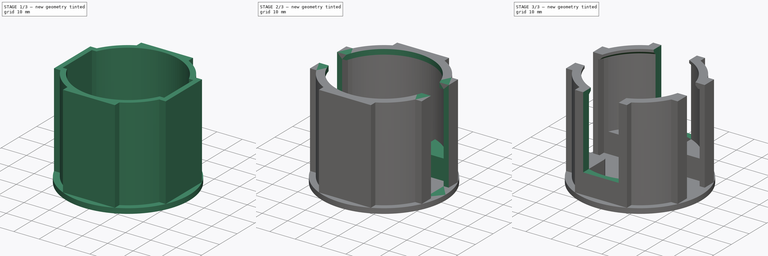
[diagram: build sequence overview — one tinted view per stage of 3, left to right]
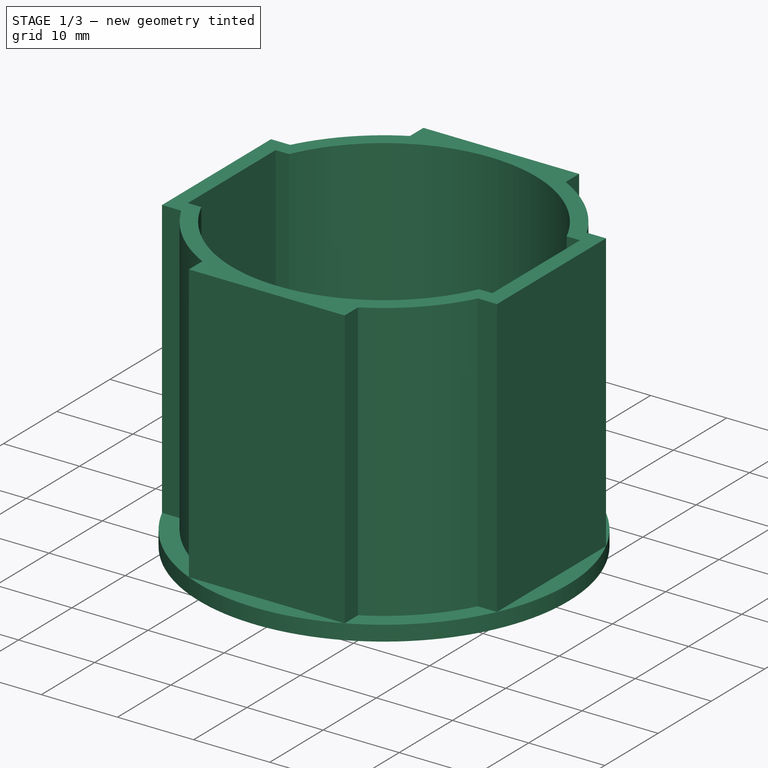
[diagram: stage 1 of 3 — iso view after this stage's code; geometry added in this stage tinted green]
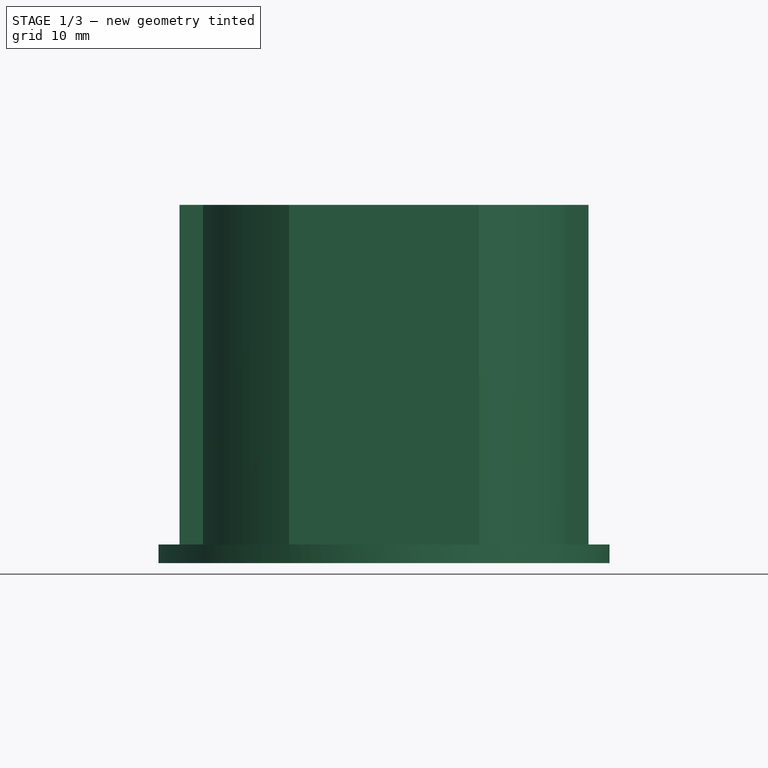
[diagram: stage 1 of 3 — front view after this stage's code; geometry added in this stage tinted green]
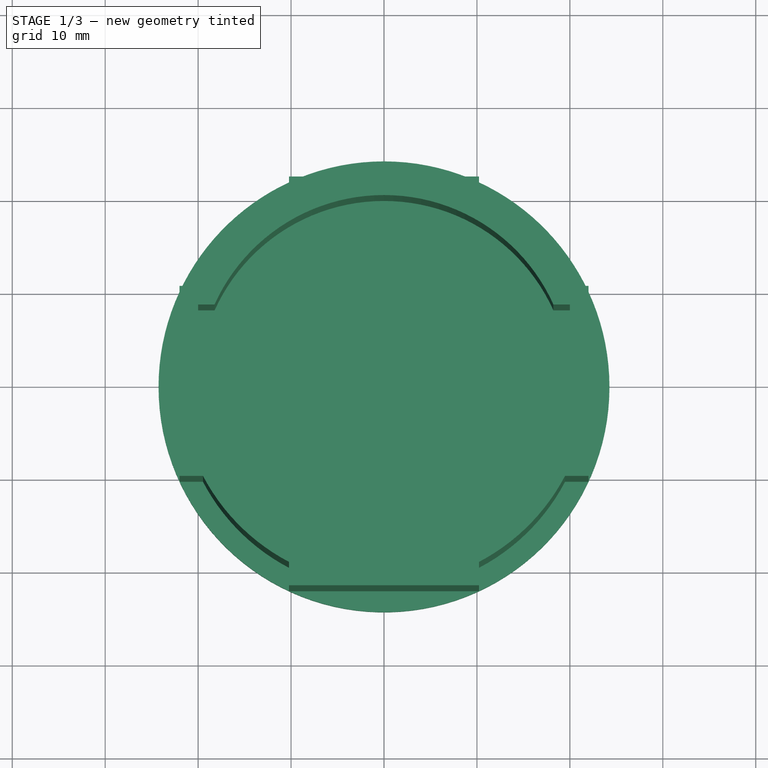
[diagram: stage 1 of 3 — top view after this stage's code; geometry added in this stage tinted green]
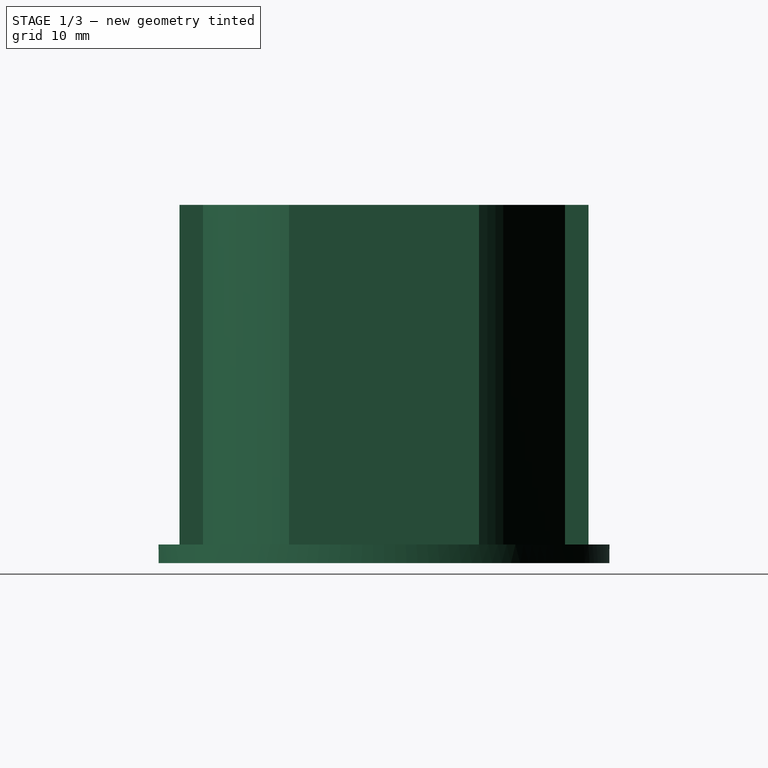
[diagram: stage 1 of 3 — right view after this stage's code; geometry added in this stage tinted green]
FCSTD DOCUMENT  (FreeCAD 1.0R39109 (Git))
Label: Contactor_Cover
License: All rights reserved
LicenseURL: https://en.wikipedia.org/wiki/All_rights_reserved
objects: Sketcher::SketchObject×6, PartDesign::Pad×4, PartDesign::Pocket×2, Spreadsheet::Sheet×1, PartDesign::Chamfer×1, PartDesign::Body×1
note: 34 computed .brp shape members not serialized (recipe doc carries the construction recipe); baked Part::Feature solids carry a one-line shape summary decoded from their .brp

FEATURE [Sketcher::SketchObject] Sketch
  ArcFitTolerance = 1e-06
  AttachmentSupport = -> [XY_Plane]
  FullyConstrained = false
  MakeInternals = false
  MapMode = 5
  expr: Constraints[0] = 39.5 mm + <<config>>.clearance * 2
  expr: Constraints[27] = 15.95 mm + 2 * <<config>>.clearance
  expr: Constraints[36] = <<config>>.wall
  expr: Constraints[48] = <<config>>.wall
  expr: Constraints[49] = <<config>>.wall
  expr: Constraints[50] = <<config>>.wall
  expr: Constraints[57] = <<config>>.wall
  sketch-geometry (33):
    g0: Circle [constr] CenterX=0 CenterY=0 CenterZ=0 NormalX=0 NormalY=0 NormalZ=1 AngleXU=0 Radius=20
    g1: LineSegment StartX=-20 StartY=0 StartZ=0 EndX=-20 EndY=8.225 EndZ=0
    g2: LineSegment StartX=-20 StartY=8.225 StartZ=0 EndX=-18.2305 EndY=8.225 EndZ=0
    g3: LineSegment StartX=-20 StartY=0 StartZ=0 EndX=-20 EndY=-8.225 EndZ=0
    g4: LineSegment StartX=-20 StartY=-8.225 StartZ=0 EndX=-18.2305 EndY=-8.225 EndZ=0
    g5: LineSegment [constr] StartX=-18.2305 StartY=8.225 StartZ=0 EndX=18.2305 EndY=8.225 EndZ=0
    g6: LineSegment StartX=18.2305 StartY=8.225 StartZ=0 EndX=20 EndY=8.225 EndZ=0
    g7: LineSegment StartX=20 StartY=8.225 StartZ=0 EndX=20 EndY=0.000240793 EndZ=0
    g8: LineSegment StartX=20 StartY=0.000240793 StartZ=0 EndX=20 EndY=-8.22452 EndZ=0
    g9: LineSegment StartX=20 StartY=-8.22452 StartZ=0 EndX=18.2307 EndY=-8.22452 EndZ=0
    g10: ArcOfCircle CenterX=-4e-16 CenterY=0 CenterZ=0 NormalX=0 NormalY=0 NormalZ=1 AngleXU=0 Radius=20 StartAngle=0.423825 EndAngle=2.71777
    g11: ArcOfCircle CenterX=-4e-16 CenterY=0 CenterZ=0 NormalX=0 NormalY=0 NormalZ=1 AngleXU=0 Radius=20 StartAngle=3.56542 EndAngle=5.85939
    g12: Circle [constr] CenterX=-4e-16 CenterY=0 CenterZ=0 NormalX=0 NormalY=0 NormalZ=1 AngleXU=0 Radius=22
    g13: LineSegment [constr] StartX=20 StartY=0.000240793 StartZ=0 EndX=22 EndY=0.000240793 EndZ=0
    g14: LineSegment StartX=19.4795 StartY=10.225 StartZ=0 EndX=22 EndY=10.225 EndZ=0
    g15: LineSegment StartX=22 StartY=10.225 StartZ=0 EndX=22 EndY=-10.225 EndZ=0
    g16: LineSegment StartX=22 StartY=-10.225 StartZ=0 EndX=19.4795 EndY=-10.225 EndZ=0
    g17: LineSegment StartX=-19.4795 StartY=10.225 StartZ=0 EndX=-22 EndY=10.225 EndZ=0
    g18: LineSegment StartX=-22 StartY=-10.225 StartZ=0 EndX=-19.4795 EndY=-10.225 EndZ=0
    g19: LineSegment [constr] StartX=-19.4795 StartY=10.225 StartZ=0 EndX=19.4795 EndY=10.225 EndZ=0
    g20: LineSegment [constr] StartX=-19.4795 StartY=-10.225 StartZ=0 EndX=19.4795 EndY=-10.225 EndZ=0
    g21: LineSegment StartX=-22 StartY=10.225 StartZ=0 EndX=-22 EndY=-10.225 EndZ=0
    g22: ArcOfCircle CenterX=1.3e-15 CenterY=0 CenterZ=0 NormalX=0 NormalY=0 NormalZ=1 AngleXU=0 Radius=22 StartAngle=0.483378 EndAngle=1.08742
    g23: ArcOfCircle CenterX=-2.9e-15 CenterY=0 CenterZ=0 NormalX=0 NormalY=0 NormalZ=1 AngleXU=0 Radius=22 StartAngle=3.62497 EndAngle=4.22901
    g24: LineSegment StartX=-10.225 StartY=-19.4795 StartZ=0 EndX=-10.225 EndY=-22 EndZ=0
    g25: LineSegment StartX=-10.225 StartY=-22 StartZ=0 EndX=10.225 EndY=-22 EndZ=0
    g26: LineSegment StartX=10.225 StartY=-22 StartZ=0 EndX=10.225 EndY=-19.4795 EndZ=0
    g27: LineSegment [constr] StartX=-18.2305 StartY=-8.225 StartZ=0 EndX=18.2307 EndY=-8.22452 EndZ=0
    g28: LineSegment StartX=-10.225 StartY=19.4795 StartZ=0 EndX=-10.225 EndY=22 EndZ=0
    g29: LineSegment StartX=-10.225 StartY=22 StartZ=0 EndX=10.225 EndY=22 EndZ=0
    g30: LineSegment StartX=10.225 StartY=22 StartZ=0 EndX=10.225 EndY=19.4795 EndZ=0
    g31: ArcOfCircle CenterX=1.3e-15 CenterY=0 CenterZ=0 NormalX=0 NormalY=0 NormalZ=1 AngleXU=0 Radius=22 StartAngle=2.05417 EndAngle=2.65821
    g32: ArcOfCircle CenterX=-2.9e-15 CenterY=0 CenterZ=0 NormalX=0 NormalY=0 NormalZ=1 AngleXU=0 Radius=22 StartAngle=5.19577 EndAngle=5.79981
  constraints (95):
    c: Diameter(g0) = 40
    c: Coincident(g0,g-1)
    c: PointOnObject(g1,g-1)
    c: Vertical(g1)
    c: Coincident(g2,g1)
    c: PointOnObject(g2,g0)
    c: Horizontal(g2)
    c: Coincident(g3,g1)
    c: Vertical(g3)
    c: Equal(g3,g1)
    c: PointOnObject(g1,g0)
    c: Coincident(g4,g3)
    c: PointOnObject(g4,g0)
    c: Horizontal(g4)
    c: Coincident(g5,g2)
    c: PointOnObject(g5,g0)
    c: Horizontal(g5)
    c: Coincident(g5,g6)
    c: Horizontal(g6)
    c: Coincident(g6,g7)
    c: PointOnObject(g7,g0)
    c: Vertical(g7)
    c: Coincident(g7,g8)
    c: Vertical(g8)
    c: Coincident(g8,g9)
    c: PointOnObject(g9,g0)
    c: Horizontal(g9)
    c: Equal(g7,g8) = 16.45
    c: DistanceY(g3,g1) = 16.45
    c: Coincident(g10,g2)
    c: Coincident(g10,g5)
    c: Coincident(g11,g4)
    c: Coincident(g11,g9)
    c: Coincident(g12,g10)
    c: Coincident(g13,g7)
    c: PointOnObject(g13,g12)
    c: Horizontal(g13) = 2
    c: DistanceX(g13,g13) = 2
    c: PointOnObject(g14,g12)
    c: Horizontal(g14)
    c: Coincident(g14,g15)
    c: Vertical(g15)
    c: Coincident(g15,g16)
    c: PointOnObject(g16,g12)
    c: Horizontal(g16)
    c: PointOnObject(g17,g12)
    c: Horizontal(g17)
    c: PointOnObject(g18,g12)
    c: Horizontal(g18) = 2
    c: DistanceY(g18,g3) = 2
    c: DistanceY(g1,g17) = 2
    c: DistanceX(g17,g1) = 2
    c: Coincident(g19,g17)
    c: Coincident(g19,g14)
    c: Horizontal(g19)
    c: Coincident(g20,g18)
    c: Coincident(g20,g16)
    c: Horizontal(g20) = 2
    c: DistanceX(g6,g14) = 2
    c: Coincident(g10,g11)
    c: Coincident(g21,g17)
    c: Coincident(g21,g18)
    c: Vertical(g21)
    c: Coincident(g31,g17)
    c: Coincident(g22,g14)
    c: Coincident(g23,g18)
    c: Coincident(g32,g16)
    c: Vertical(g24)
    c: Coincident(g24,g25)
    c: Horizontal(g25)
    c: Coincident(g25,g26)
    c: Vertical(g26)
    c: Equal(g24,g26)
    c: Equal(g18,g24)
    c: PointOnObject(g23,g-1)
    c: PointOnObject(g22,g-1)
    c: Coincident(g27,g4)
    c: Coincident(g27,g9)
    c: Vertical(g28)
    c: Coincident(g28,g29)
    c: Horizontal(g29)
    c: Coincident(g29,g30)
    c: Vertical(g30)
    c: Equal(g28,g30)
    c: Equal(g28,g24)
    c: Equal(g22,g31)
    c: Coincident(g22,g30)
    c: Coincident(g22,g31)
    c: Coincident(g31,g28)
    c: Equal(g23,g32)
    c: Coincident(g23,g24)
    c: Coincident(g23,g32)
    c: Coincident(g32,g26)
    c: Tangent(g29,g12)
    c: Tangent(g12,g25)
FEATURE [Spreadsheet::Sheet] Spreadsheet  label="config"
  cells = A1='clearance; B1(clearance)==0.25 mm; A2='wall thickness; B2(wall)==2 mm; A3='terminal height; B3(theight)==8 mm; A4='body height; B4(bheight)==52.7 mm - 24.15 mm
FEATURE [PartDesign::Pad] Pad  label="Main Pad"
  Direction = (0,0,1)
  Length = 36.55
  Length2 = 10
  Profile = -> Sketch
  ReferenceAxis = -> Sketch [N_Axis]
  Refine = true
  Suppressed = false
  Type = 0
  expr: Length = <<config>>.theight + <<config>>.bheight
FEATURE [Sketcher::SketchObject] Sketch001
  ArcFitTolerance = 1e-06
  AttachmentSupport = -> [XY_Plane]
  ExternalGeometry = -> [Pad]
  FullyConstrained = true
  MakeInternals = false
  MapMode = 5
  sketch-geometry (1):
    g0: Circle CenterX=0 CenterY=0 CenterZ=0 NormalX=0 NormalY=0 NormalZ=1 AngleXU=0 Radius=24.2601
  constraints (2):
    c: Coincident(g0,g-1)
    c: PointOnObject(g-4,g0)
FEATURE [PartDesign::Pad] Pad001  label="Cap Pad"
  BaseFeature = -> Pad
  Direction = (0,0,1)
  Length = 2
  Length2 = 10
  Profile = -> Sketch001
  ReferenceAxis = -> Sketch001 [N_Axis]
  Refine = true
  Reversed = true
  Suppressed = false
  Type = 0
  expr: Length = <<config>>.wall
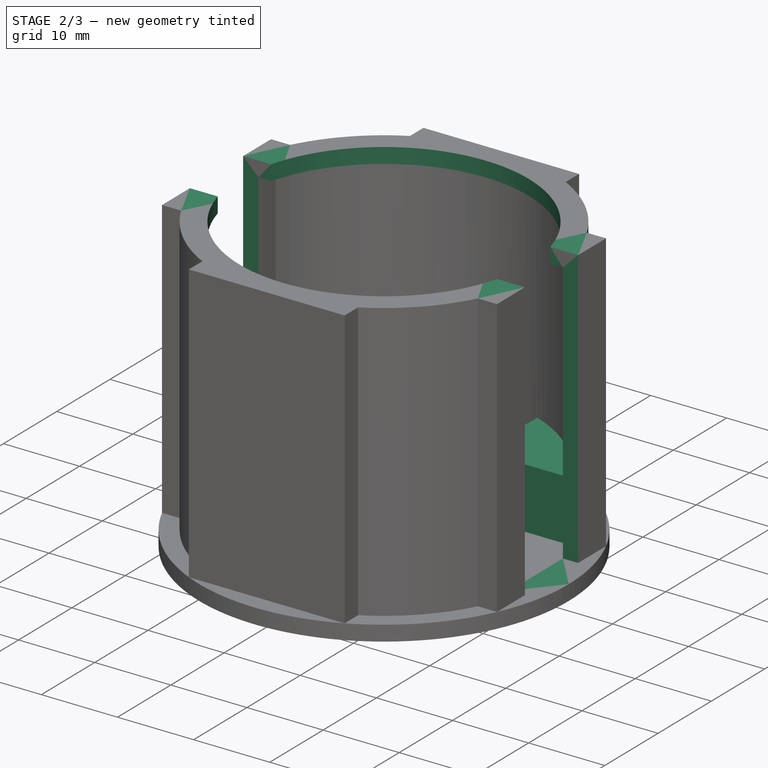
[diagram: stage 2 of 3 — iso view after this stage's code; geometry added in this stage tinted green]
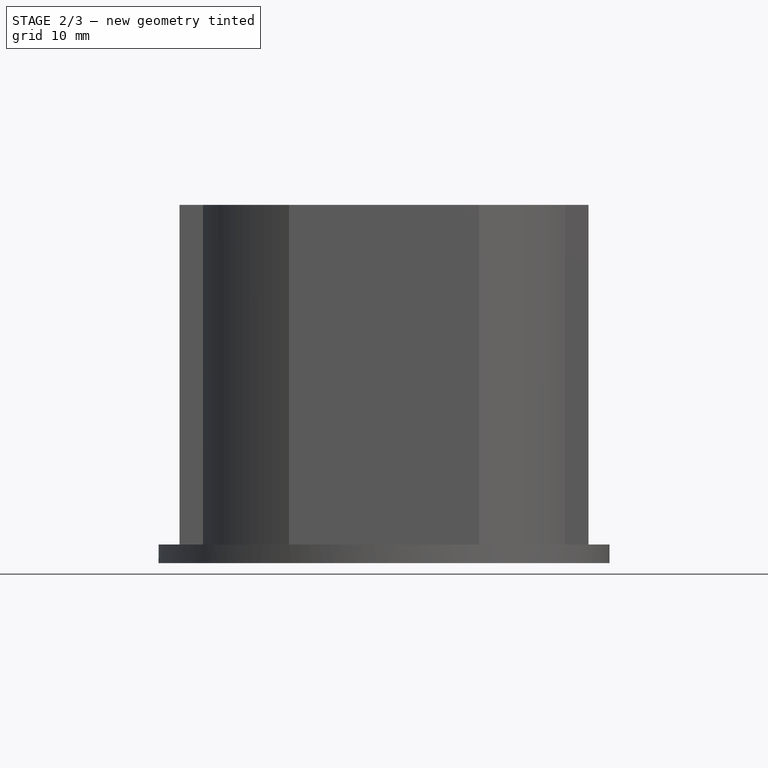
[diagram: stage 2 of 3 — front view after this stage's code; geometry added in this stage tinted green]
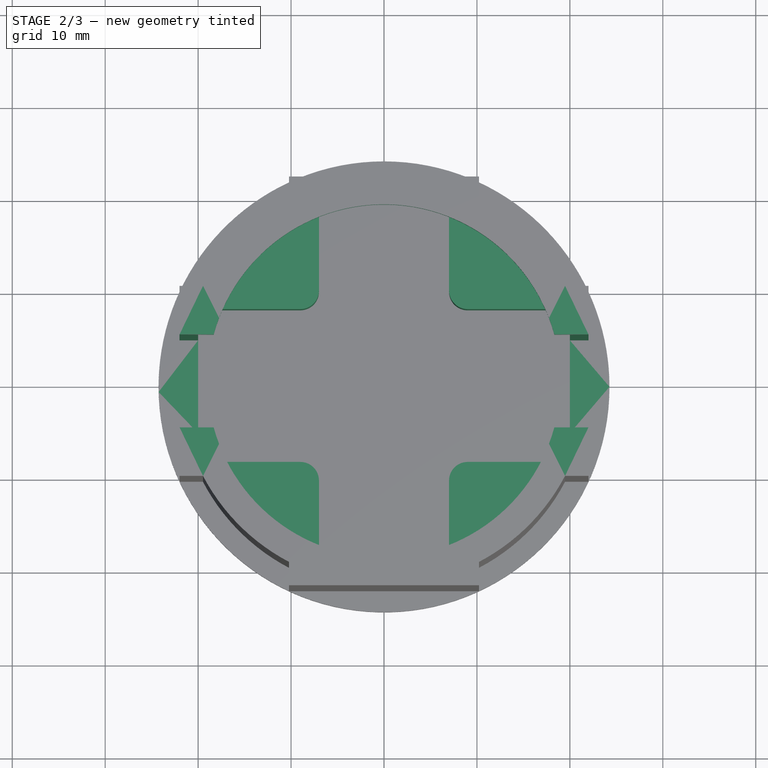
[diagram: stage 2 of 3 — top view after this stage's code; geometry added in this stage tinted green]
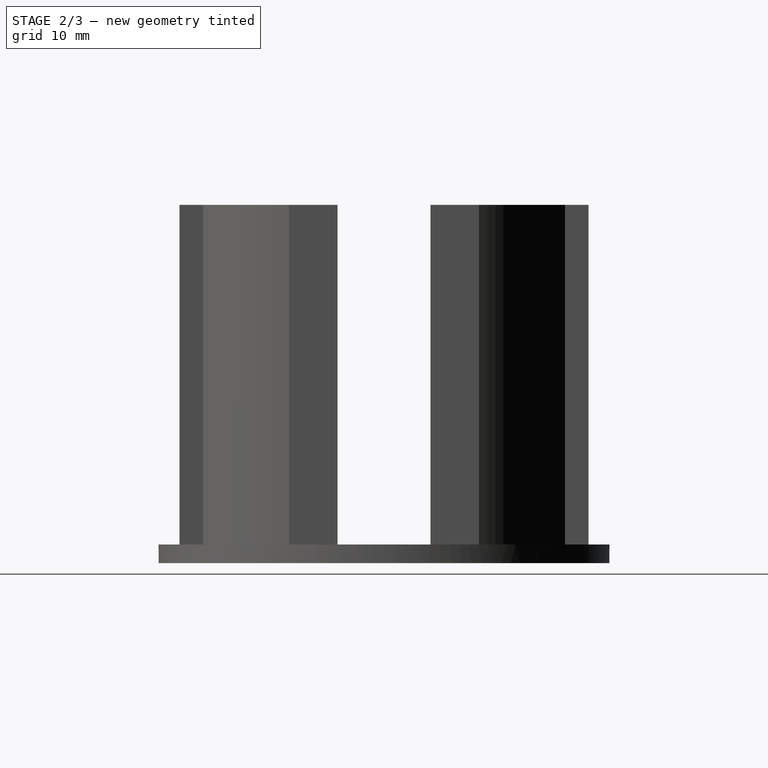
[diagram: stage 2 of 3 — right view after this stage's code; geometry added in this stage tinted green]
FEATURE [Sketcher::SketchObject] Sketch002
  ArcFitTolerance = 1e-06
  AttachmentSupport = -> [XY_Plane]
  FullyConstrained = true
  MakeInternals = false
  MapMode = 5
  sketch-geometry (6):
    g0: LineSegment StartX=-30 StartY=5 StartZ=0 EndX=-30 EndY=-5 EndZ=0
    g1: LineSegment StartX=-30 StartY=-5 StartZ=0 EndX=30 EndY=-5 EndZ=0
    g2: LineSegment StartX=30 StartY=-5 StartZ=0 EndX=30 EndY=5 EndZ=0
    g3: LineSegment StartX=30 StartY=5 StartZ=0 EndX=-30 EndY=5 EndZ=0
    g4: LineSegment [constr] StartX=-30 StartY=5 StartZ=0 EndX=30 EndY=-5 EndZ=0
    g5: LineSegment [constr] StartX=30 StartY=5 StartZ=0 EndX=-30 EndY=-5 EndZ=0
  constraints (16):
    c: Coincident(g0,g1)
    c: Coincident(g1,g2)
    c: Coincident(g2,g3)
    c: Coincident(g3,g0)
    c: Vertical(g0)
    c: Vertical(g2)
    c: Horizontal(g1)
    c: Horizontal(g3)
    c: Coincident(g4,g0)
    c: Coincident(g4,g1)
    c: Coincident(g5,g2)
    c: Coincident(g5,g0)
    c: PointOnObject(g-1,g4)
    c: PointOnObject(g-1,g5)
    c: DistanceX(g1,g1) = 60
    c: DistanceY(g0,g0) = 10
FEATURE [Sketcher::SketchObject] Sketch003
  ArcFitTolerance = 1e-06
  AttachmentSupport = -> [XY_Plane]
  FullyConstrained = true
  MakeInternals = false
  MapMode = 5
  sketch-geometry (6):
    g0: LineSegment StartX=-7 StartY=30 StartZ=0 EndX=-7 EndY=-30 EndZ=0
    g1: LineSegment StartX=-7 StartY=-30 StartZ=0 EndX=7 EndY=-30 EndZ=0
    g2: LineSegment StartX=7 StartY=-30 StartZ=0 EndX=7 EndY=30 EndZ=0
    g3: LineSegment StartX=7 StartY=30 StartZ=0 EndX=-7 EndY=30 EndZ=0
    g4: LineSegment [constr] StartX=-7 StartY=30 StartZ=0 EndX=7 EndY=-30 EndZ=0
    g5: LineSegment [constr] StartX=-7 StartY=-30 StartZ=0 EndX=7 EndY=30 EndZ=0
  constraints (16):
    c: Coincident(g0,g1)
    c: Coincident(g1,g2)
    c: Coincident(g2,g3)
    c: Coincident(g3,g0)
    c: Vertical(g0)
    c: Vertical(g2)
    c: Horizontal(g1)
    c: Horizontal(g3)
    c: Coincident(g4,g0)
    c: Coincident(g4,g1)
    c: Coincident(g5,g0)
    c: Coincident(g5,g2)
    c: PointOnObject(g-1,g4)
    c: PointOnObject(g-1,g5)
    c: DistanceY(g0,g0) = 60
    c: DistanceX(g3,g3) = 14
FEATURE [Sketcher::SketchObject] Sketch004
  ArcFitTolerance = 1e-06
  AttachmentSupport = -> [XY_Plane]
  FullyConstrained = true
  MakeInternals = false
  MapMode = 5
  expr: Constraints[43] = <<config>>.wall
  sketch-geometry (20):
    g0: ArcOfCircle CenterX=8.5e-15 CenterY=-5.2e-15 CenterZ=0 NormalX=0 NormalY=0 NormalZ=1 AngleXU=0 Radius=20 StartAngle=1.92837 EndAngle=2.71777
    g1: ArcOfCircle CenterX=9.3e-15 CenterY=2.45e-14 CenterZ=0 NormalX=0 NormalY=0 NormalZ=1 AngleXU=0 Radius=20 StartAngle=0.423825 EndAngle=1.21323
    g2: ArcOfCircle CenterX=5.6e-15 CenterY=-2.8e-15 CenterZ=0 NormalX=0 NormalY=0 NormalZ=1 AngleXU=0 Radius=20 StartAngle=5.06996 EndAngle=5.85939
    g3: ArcOfCircle CenterX=-3.8e-15 CenterY=-2.3e-15 CenterZ=0 NormalX=0 NormalY=0 NormalZ=1 AngleXU=0 Radius=20 StartAngle=3.56542 EndAngle=4.35482
    g4: LineSegment StartX=-18.2305 StartY=8.225 StartZ=0 EndX=-9 EndY=8.225 EndZ=0
    g5: LineSegment StartX=-7 StartY=10.225 StartZ=0 EndX=-7 EndY=18.735 EndZ=0
    g6: LineSegment StartX=7 StartY=18.735 StartZ=0 EndX=7 EndY=10.225 EndZ=0
    g7: LineSegment StartX=9 StartY=8.225 StartZ=0 EndX=18.2305 EndY=8.225 EndZ=0
    g8: LineSegment StartX=18.2307 StartY=-8.22452 StartZ=0 EndX=9 EndY=-8.22452 EndZ=0
    g9: LineSegment StartX=7 StartY=-10.2245 StartZ=0 EndX=7 EndY=-18.735 EndZ=0
    g10: LineSegment StartX=-7 StartY=-18.735 StartZ=0 EndX=-7 EndY=-10.225 EndZ=0
    g11: LineSegment StartX=-9 StartY=-8.225 StartZ=0 EndX=-18.2305 EndY=-8.225 EndZ=0
    g12: ArcOfCircle CenterX=-9 CenterY=10.225 CenterZ=0 NormalX=0 NormalY=0 NormalZ=1 AngleXU=0 Radius=2 StartAngle=4.71239 EndAngle=6.28319
    g13: GeomPoint [constr] X=-7 Y=8.225 Z=0
    g14: ArcOfCircle CenterX=9 CenterY=10.225 CenterZ=0 NormalX=0 NormalY=0 NormalZ=1 AngleXU=0 Radius=2 StartAngle=3.14159 EndAngle=4.71239
    g15: GeomPoint [constr] X=7 Y=8.225 Z=0
    g16: ArcOfCircle CenterX=9 CenterY=-10.2245 CenterZ=0 NormalX=0 NormalY=0 NormalZ=1 AngleXU=0 Radius=2 StartAngle=1.5708 EndAngle=3.14159
    g17: GeomPoint [constr] X=7 Y=-8.22452 Z=0
    g18: ArcOfCircle CenterX=-9 CenterY=-10.225 CenterZ=0 NormalX=0 NormalY=0 NormalZ=1 AngleXU=0 Radius=2 StartAngle=0 EndAngle=1.5708
    g19: GeomPoint [constr] X=-7 Y=-8.225 Z=0
  constraints (44):
    c: Tangent(g0,g-3) = -1.5708
    c: Coincident(g0,g-3)
    c: Tangent(g1,g-4) = -1.5708
    c: Coincident(g1,g-4)
    c: Tangent(g2,g-5) = -1.5708
    c: Coincident(g2,g-5)
    c: Tangent(g3,g-6) = -1.5708
    c: Coincident(g3,g-6)
    c: Coincident(g0,g4)
    c: Coincident(g5,g0)
    c: Coincident(g1,g6)
    c: Coincident(g7,g1)
    c: Coincident(g2,g8)
    c: Coincident(g9,g2)
    c: Coincident(g3,g10)
    c: Coincident(g11,g3)
    c: Horizontal(g4)
    c: Vertical(g5)
    c: Vertical(g6)
    c: Horizontal(g7)
    c: Horizontal(g8)
    c: Vertical(g9)
    c: Vertical(g10)
    c: Horizontal(g11)
    c: PointOnObject(g13,g5)
    c: PointOnObject(g13,g4)
    c: Tangent(g5,g12) = -1.5708
    c: Tangent(g4,g12) = -1.5708
    c: PointOnObject(g15,g6)
    c: PointOnObject(g15,g7)
    c: Tangent(g6,g14) = -1.5708
    c: Tangent(g7,g14) = -1.5708
    c: PointOnObject(g17,g8)
    c: PointOnObject(g17,g9)
    c: Tangent(g8,g16) = -1.5708
    c: Tangent(g9,g16) = -1.5708
    c: PointOnObject(g19,g10)
    c: PointOnObject(g19,g11)
    c: Tangent(g10,g18) = -1.5708
    c: Tangent(g11,g18) = -1.5708
    c: Equal(g12,g14)
    c: Equal(g16,g14)
    c: Equal(g18,g14)
    c: Radius(g14) = 2
FEATURE [PartDesign::Pad] Pad002  label="Terminal Pad"
  BaseFeature = -> Pad001
  Direction = (0,0,1)
  Length = 8
  Length2 = 10
  Profile = -> Sketch004
  ReferenceAxis = -> Sketch004 [N_Axis]
  Refine = true
  Suppressed = false
  Type = 0
  expr: Length = <<config>>.theight
FEATURE [Sketcher::SketchObject] Sketch005
  ArcFitTolerance = 1e-06
  AttachmentSupport = -> [XY_Plane]
  FullyConstrained = true
  MakeInternals = false
  MapMode = 5
  expr: Constraints[1] = 40 mm - 2 mm
  expr: Constraints[3] = 40 mm + <<config>>.wall * 2
  sketch-geometry (2):
    g0: Circle CenterX=0 CenterY=0 CenterZ=0 NormalX=0 NormalY=0 NormalZ=1 AngleXU=0 Radius=19
    g1: Circle CenterX=0 CenterY=0 CenterZ=0 NormalX=0 NormalY=0 NormalZ=1 AngleXU=0 Radius=22
  constraints (4):
    c: Coincident(g0,g-1)
    c: Diameter(g0) = 38
    c: Coincident(g1,g0)
    c: Diameter(g1) = 44
FEATURE [PartDesign::Pad] Pad003  label="Snap Pad"
  BaseFeature = -> Pad002
  Direction = (0,0,1)
  Length = 36.55
  Length2 = -34.55
  Profile = -> Sketch005
  ReferenceAxis = -> Sketch005 [N_Axis]
  Refine = true
  Suppressed = false
  Type = 4
  expr: Length = <<config>>.theight + <<config>>.bheight
  expr: Length2 = -(<<config>>.theight + <<config>>.bheight - 2 mm)
FEATURE [PartDesign::Pocket] Pocket002  label="Coil Pocket"
  BaseFeature = -> Pad003
  Direction = (0,0,-1)
  Length = 5
  Length2 = 5
  Profile = -> Sketch002
  ReferenceAxis = -> Sketch002 [N_Axis]
  Refine = true
  Reversed = true
  Suppressed = false
  Type = 1
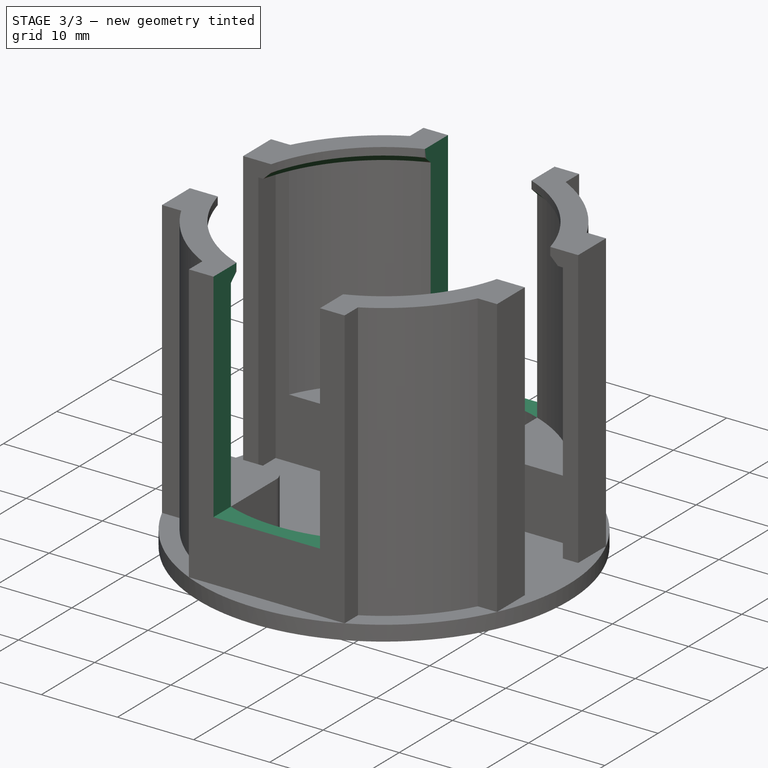
[diagram: stage 3 of 3 — iso view after this stage's code; geometry added in this stage tinted green]
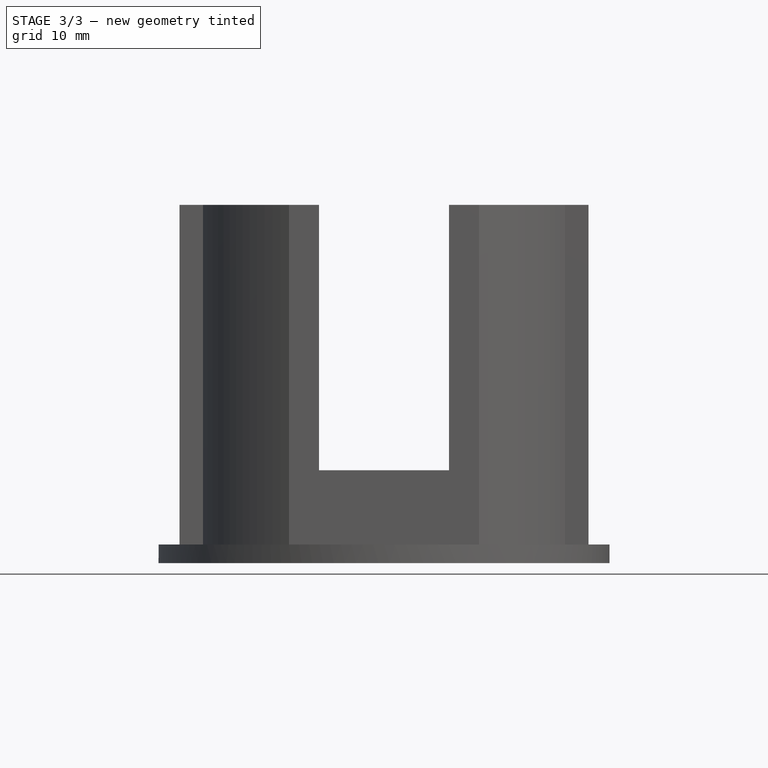
[diagram: stage 3 of 3 — front view after this stage's code; geometry added in this stage tinted green]
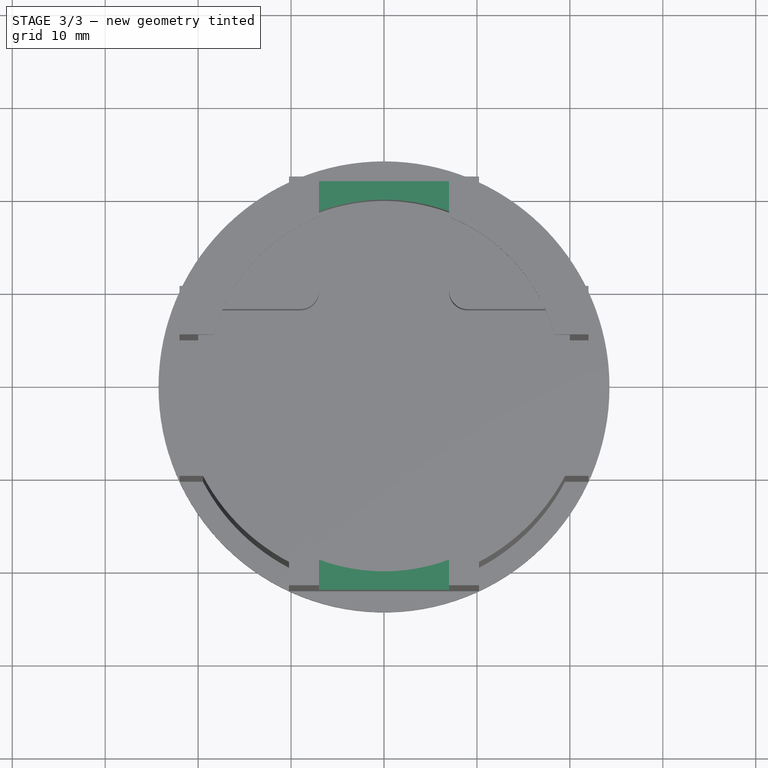
[diagram: stage 3 of 3 — top view after this stage's code; geometry added in this stage tinted green]
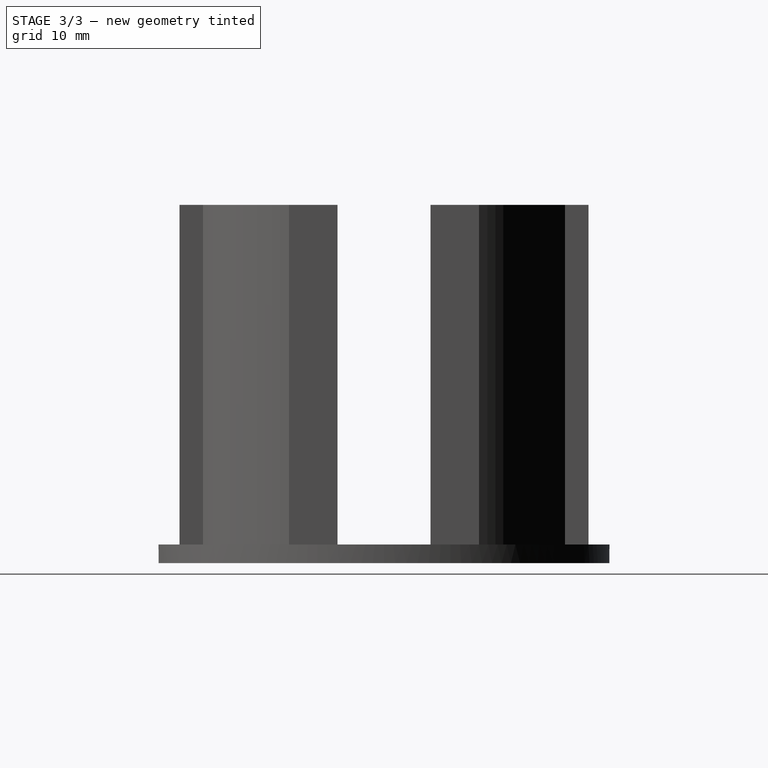
[diagram: stage 3 of 3 — right view after this stage's code; geometry added in this stage tinted green]
FEATURE [PartDesign::Pocket] Pocket003  label="Lead Wire Pocket"
  BaseFeature = -> Pocket002
  Direction = (0,0,-1)
  Length = -8
  Length2 = 60
  Profile = -> Sketch003
  ReferenceAxis = -> Sketch003 [N_Axis]
  Refine = true
  Suppressed = false
  Type = 4
  expr: Length = -<<config>>.theight
FEATURE [PartDesign::Chamfer] Chamfer
  Angle = 45
  Base = -> Pocket003 [Edge165,Edge123,Edge154,Edge178]
  BaseFeature = -> Pocket003
  ChamferType = 0
  FlipDirection = false
  Refine = true
  Size = 0.99
  Size2 = 1
  SupportTransform = false
  Suppressed = false
  UseAllEdges = false
FEATURE [PartDesign::Body] Body
  AllowCompound = false
  Group = -> [Sketch,Pad,Sketch001,Pad001,Sketch002,Sketch003,Sketch004,Pad002,Sketch005,Pad003,Pocket002,Pocket003,Chamfer]
  Origin = -> Origin
  Tip = -> Chamfer
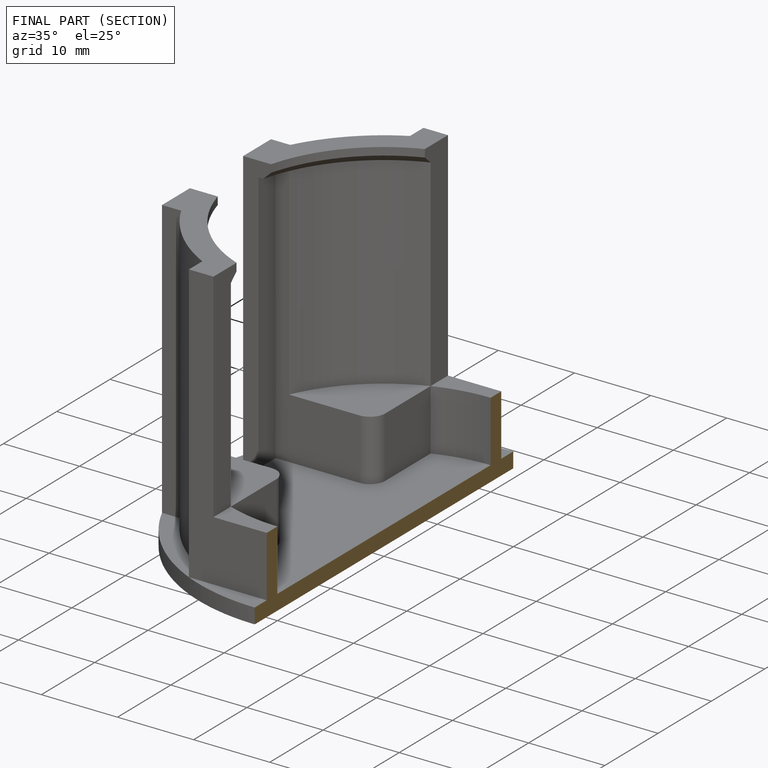
[diagram: finished part — half-section view (interior)]
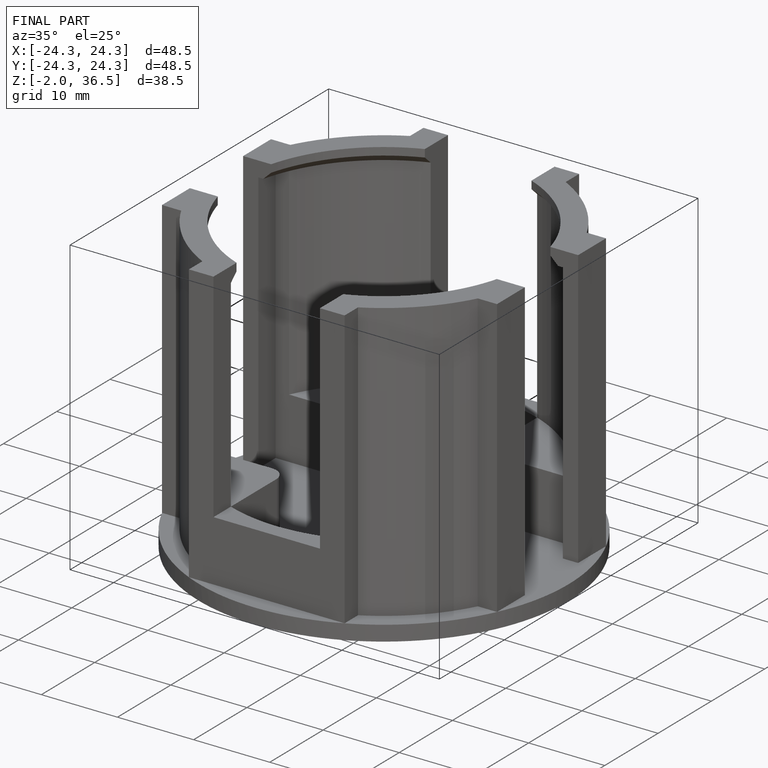
[diagram: finished part — iso view with bounding-box wireframe]
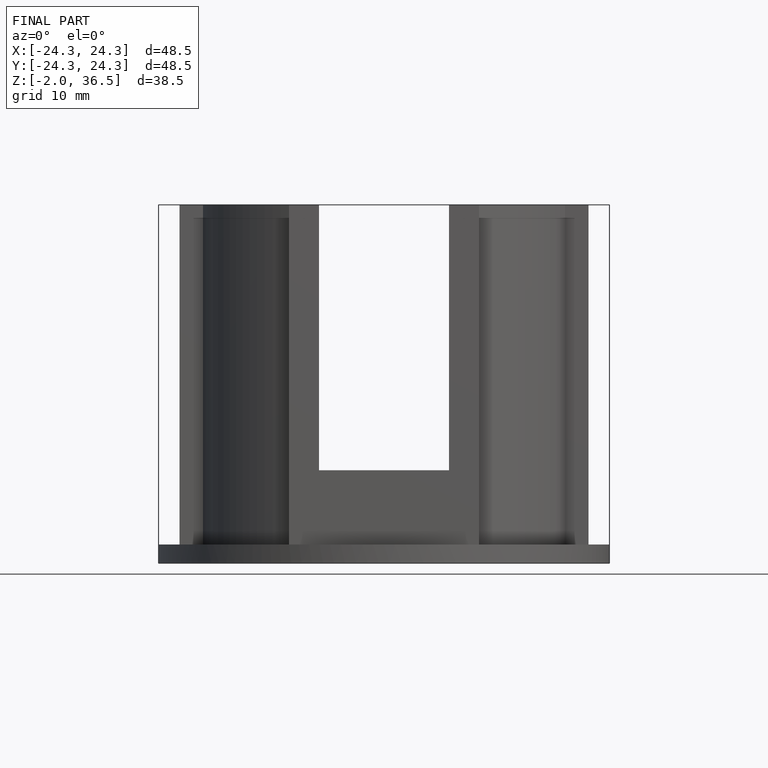
[diagram: finished part — front view with bounding-box wireframe]
